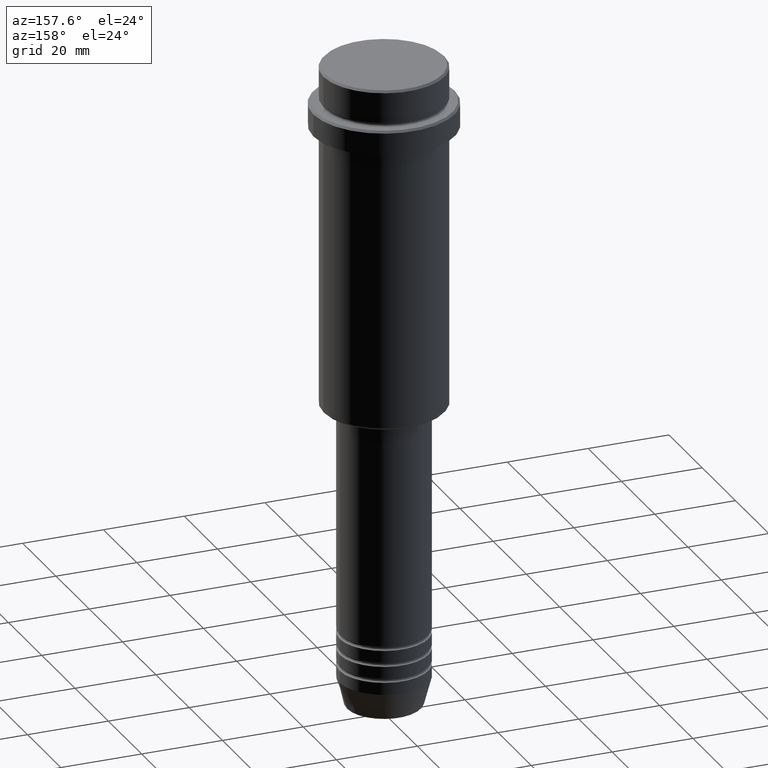
[diagram: clean part render]
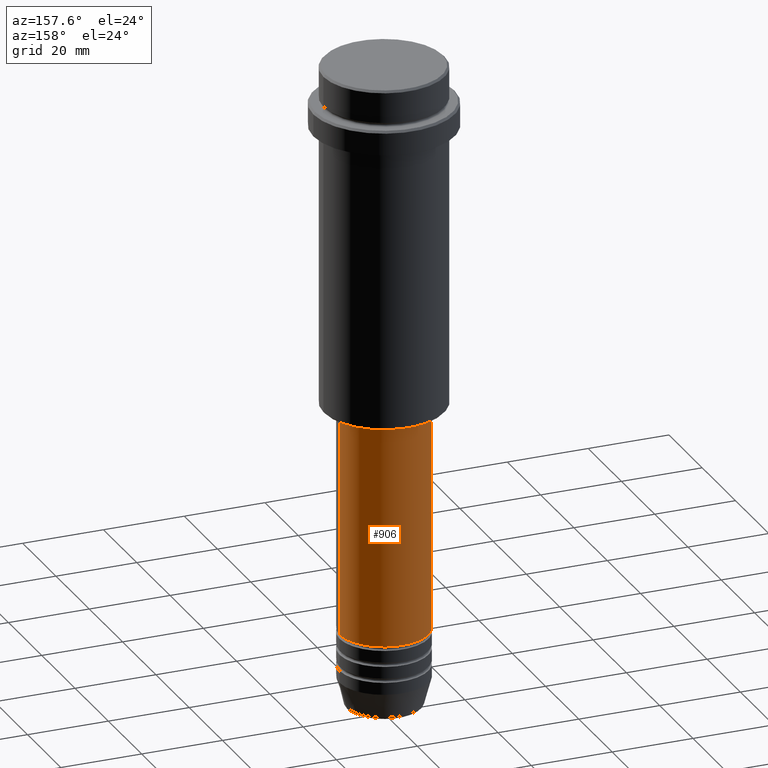
[diagram: same view with one face highlighted and labeled with its STEP entity id]
A machine part, auxiliary view. The second image highlights one B-rep face of the part: STEP entity #906.
In plain terms, the highlighted cylindrical surface (partial cylindrical patch) has radius 11 mm, axis along (-0, -0, 1).
Its self-contained STEP definition (entity closure, byte-faithful):
#103 = ORIENTED_EDGE ( 'NONE', *, *, #1349, .T. ) ;
#129 = DIRECTION ( 'NONE',  ( -0.000000000000000000, -0.000000000000000000, 1.000000000000000000 ) ) ;
#160 = CARTESIAN_POINT ( 'NONE',  ( 11.00000000000000000, 0.000000000000000000, 0.000000000000000000 ) ) ;
#228 = DIRECTION ( 'NONE',  ( 1.000000000000000000, 0.000000000000000000, 0.000000000000000000 ) ) ;
#231 = DIRECTION ( 'NONE',  ( 1.000000000000000000, 0.000000000000000000, 0.000000000000000000 ) ) ;
#327 = CYLINDRICAL_SURFACE ( 'NONE', #757, 11.00000000000000000 ) ;
#339 = CARTESIAN_POINT ( 'NONE',  ( 0.000000000000000000, 0.000000000000000000, 0.000000000000000000 ) ) ;
#391 = DIRECTION ( 'NONE',  ( -0.000000000000000000, -0.000000000000000000, 1.000000000000000000 ) ) ;
#404 = EDGE_CURVE ( 'NONE', #572, #545, #1133, .T. ) ;
#462 = LINE ( 'NONE', #1085, #1115 ) ;
#545 = VERTEX_POINT ( 'NONE', #1230 ) ;
#572 = VERTEX_POINT ( 'NONE', #1068 ) ;
#684 = CARTESIAN_POINT ( 'NONE',  ( -11.00000000000000000, 1.347111479062088405E-15, -140.9999999999999147 ) ) ;
#696 = DIRECTION ( 'NONE',  ( 1.000000000000000000, 0.000000000000000000, 0.000000000000000000 ) ) ;
#711 = AXIS2_PLACEMENT_3D ( 'NONE', #1203, #129, #228 ) ;
#757 = AXIS2_PLACEMENT_3D ( 'NONE', #339, #988, #231 ) ;
#766 = ORIENTED_EDGE ( 'NONE', *, *, #1066, .F. ) ;
#834 = VERTEX_POINT ( 'NONE', #1110 ) ;
#864 = DIRECTION ( 'NONE',  ( -0.000000000000000000, -0.000000000000000000, 1.000000000000000000 ) ) ;
#886 = FACE_OUTER_BOUND ( 'NONE', #1029, .T. ) ;
#906 = ADVANCED_FACE ( 'NONE', ( #886 ), #327, .T. ) ;
#934 = EDGE_CURVE ( 'NONE', #976, #834, #462, .T. ) ;
#942 = CIRCLE ( 'NONE', #711, 11.00000000000000000 ) ;
#967 = ORIENTED_EDGE ( 'NONE', *, *, #934, .T. ) ;
#976 = VERTEX_POINT ( 'NONE', #684 ) ;
#985 = CIRCLE ( 'NONE', #1168, 10.99999999999999822 ) ;
#988 = DIRECTION ( 'NONE',  ( -0.000000000000000000, -0.000000000000000000, 1.000000000000000000 ) ) ;
#1029 = EDGE_LOOP ( 'NONE', ( #103, #967, #766, #1401 ) ) ;
#1066 = EDGE_CURVE ( 'NONE', #545, #834, #985, .T. ) ;
#1068 = CARTESIAN_POINT ( 'NONE',  ( 11.00000000000000000, 0.000000000000000000, -140.9999999999999147 ) ) ;
#1085 = CARTESIAN_POINT ( 'NONE',  ( -11.00000000000000000, 1.347111479062088405E-15, 0.000000000000000000 ) ) ;
#1110 = CARTESIAN_POINT ( 'NONE',  ( -10.99999999999999822, 1.347111479062088207E-15, -86.00000000000000000 ) ) ;
#1115 = VECTOR ( 'NONE', #864, 1000.000000000000000 ) ;
#1133 = LINE ( 'NONE', #160, #1284 ) ;
#1139 = DIRECTION ( 'NONE',  ( -0.000000000000000000, -0.000000000000000000, 1.000000000000000000 ) ) ;
#1168 = AXIS2_PLACEMENT_3D ( 'NONE', #1355, #1139, #696 ) ;
#1203 = CARTESIAN_POINT ( 'NONE',  ( 0.000000000000000000, 0.000000000000000000, -140.9999999999999147 ) ) ;
#1230 = CARTESIAN_POINT ( 'NONE',  ( 10.99999999999999822, 0.000000000000000000, -86.00000000000000000 ) ) ;
#1284 = VECTOR ( 'NONE', #391, 1000.000000000000000 ) ;
#1349 = EDGE_CURVE ( 'NONE', #572, #976, #942, .T. ) ;
#1355 = CARTESIAN_POINT ( 'NONE',  ( 0.000000000000000000, 0.000000000000000000, -86.00000000000000000 ) ) ;
#1401 = ORIENTED_EDGE ( 'NONE', *, *, #404, .F. ) ;